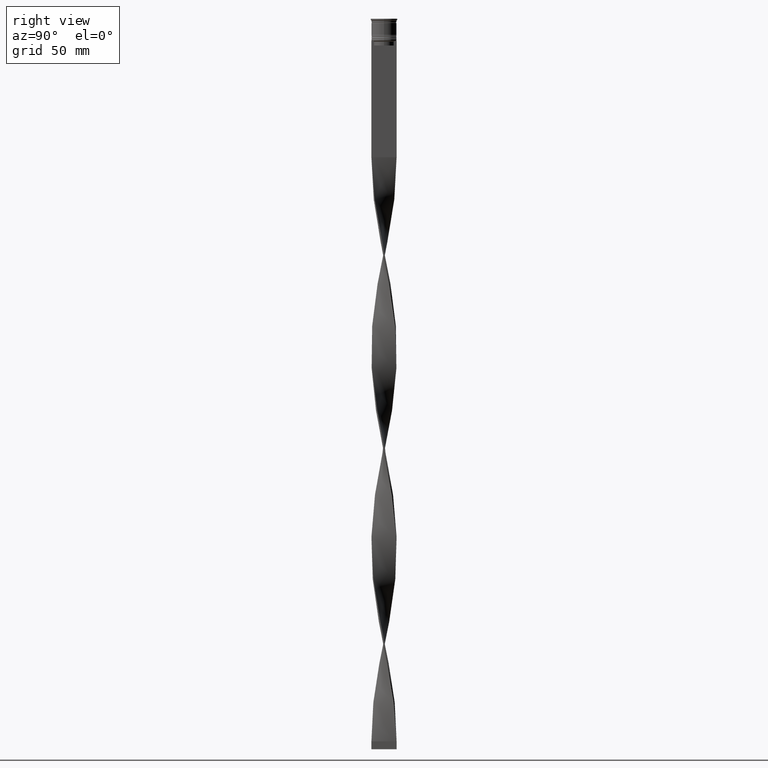
[diagram: clean part render]
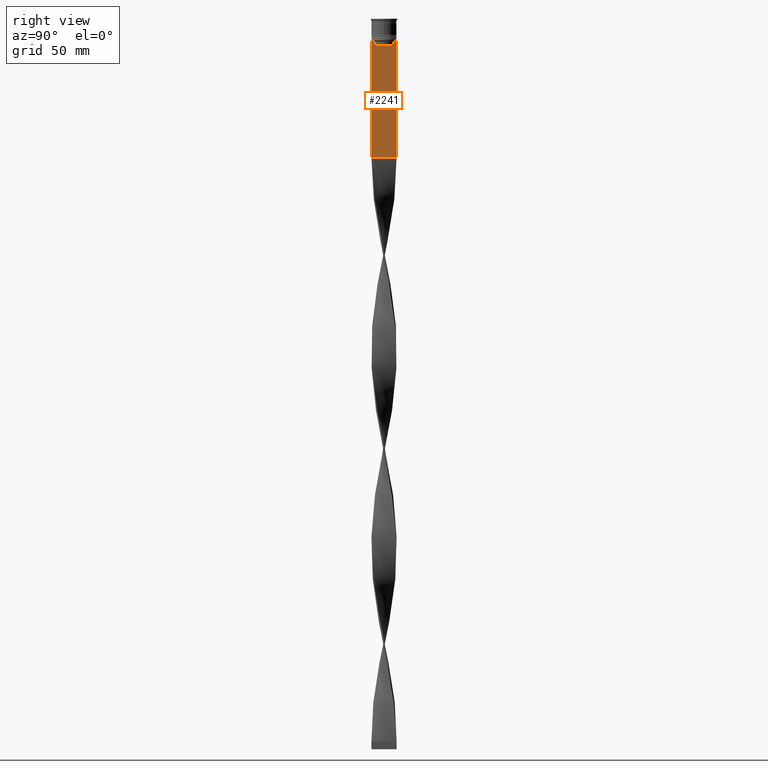
[diagram: same view with one face highlighted and labeled with its STEP entity id]
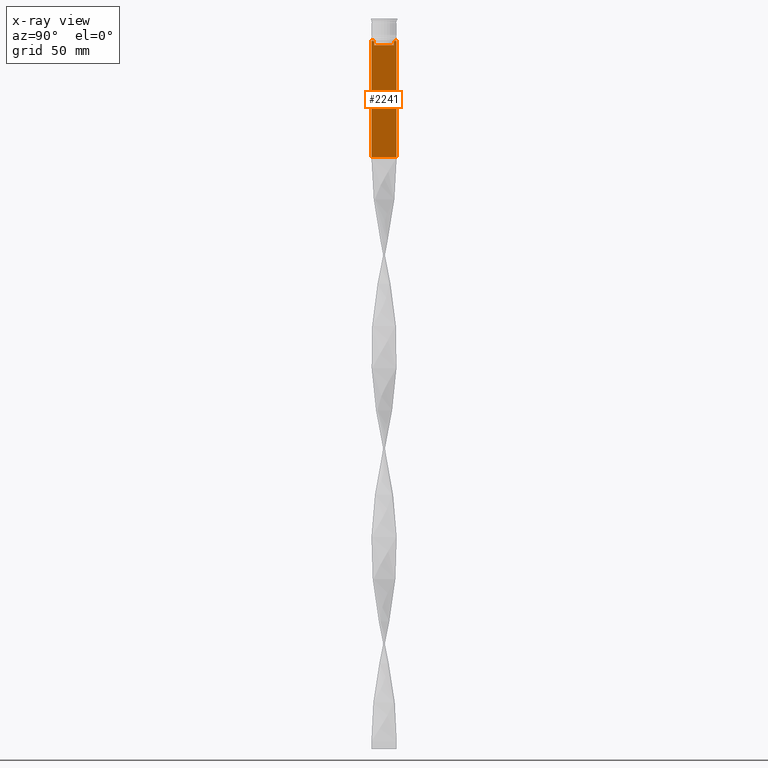
[diagram: x-ray of the same camera — body ghosted, the highlighted face saturated]
A machine part, right view. The second image highlights one B-rep face of the part: STEP entity #2241.
The next image is the same camera in x-ray: the body ghosted, the highlighted face saturated — about 0% of this face is hidden behind the body in this view.
In plain terms, the highlighted planar face has unit normal (-1, 0, 0).
Its self-contained STEP definition (entity closure, byte-faithful):
#26 = VECTOR ( 'NONE', #1980, 1000.000000000000000 ) ;
#42 = CARTESIAN_POINT ( 'NONE',  ( 0.5000000000000001110, -6.714736947305993908, -14.16668390685738821 ) ) ;
#48 = EDGE_CURVE ( 'NONE', #411, #3325, #3118, .T. ) ;
#60 = LINE ( 'NONE', #3711, #3507 ) ;
#130 = LINE ( 'NONE', #4127, #1555 ) ;
#249 = CARTESIAN_POINT ( 'NONE',  ( 0.5000000000000001110, 7.884161337770806632, -14.00000000000000178 ) ) ;
#293 = CARTESIAN_POINT ( 'NONE',  ( 0.5000000000000001110, -6.380438856379708312, -14.50000000000000000 ) ) ;
#324 = ORIENTED_EDGE ( 'NONE', *, *, #3706, .T. ) ;
#325 = DIRECTION ( 'NONE',  ( 0.000000000000000000, 0.000000000000000000, 1.000000000000000000 ) ) ;
#370 = DIRECTION ( 'NONE',  ( 0.000000000000000000, -1.000000000000000000, 0.000000000000000000 ) ) ;
#411 = VERTEX_POINT ( 'NONE', #605 ) ;
#434 = ORIENTED_EDGE ( 'NONE', *, *, #3976, .T. ) ;
#445 = VECTOR ( 'NONE', #3978, 1000.000000000000000 ) ;
#574 = CARTESIAN_POINT ( 'NONE',  ( 0.5000000000000001110, -8.000000000000003553, -88.00000000000000000 ) ) ;
#593 = DIRECTION ( 'NONE',  ( 0.000000000000000000, 0.000000000000000000, -1.000000000000000000 ) ) ;
#597 = VERTEX_POINT ( 'NONE', #2908 ) ;
#605 = CARTESIAN_POINT ( 'NONE',  ( 0.5000000000000001110, 6.881860213634098500, -14.00000000000000178 ) ) ;
#642 = DIRECTION ( 'NONE',  ( 0.000000000000000000, 1.000000000000000000, 0.000000000000000000 ) ) ;
#706 = CARTESIAN_POINT ( 'NONE',  ( 0.5000000000000001110, -6.380438856379708312, -14.50000000000000000 ) ) ;
#726 = EDGE_CURVE ( 'NONE', #597, #2920, #3930, .T. ) ;
#750 = CARTESIAN_POINT ( 'NONE',  ( 0.5000000000000001110, -8.000000000000003553, -14.00000000000000178 ) ) ;
#807 = VERTEX_POINT ( 'NONE', #3137 ) ;
#832 = EDGE_CURVE ( 'NONE', #918, #2399, #1437, .T. ) ;
#911 = VECTOR ( 'NONE', #2263, 1000.000000000000000 ) ;
#918 = VERTEX_POINT ( 'NONE', #2295 ) ;
#923 = CARTESIAN_POINT ( 'NONE',  ( 0.5000000000000001110, 6.380438856379708312, 0.000000000000000000 ) ) ;
#931 = FACE_OUTER_BOUND ( 'NONE', #1723, .T. ) ;
#933 = CARTESIAN_POINT ( 'NONE',  ( 0.5000000000000001110, 7.999999999999996447, 2.031219541881394530 ) ) ;
#980 = EDGE_CURVE ( 'NONE', #3325, #3093, #3245, .T. ) ;
#997 = VERTEX_POINT ( 'NONE', #249 ) ;
#1000 = LINE ( 'NONE', #3097, #1298 ) ;
#1060 = ORIENTED_EDGE ( 'NONE', *, *, #2119, .T. ) ;
#1164 = CARTESIAN_POINT ( 'NONE',  ( 0.5000000000000001110, 6.380438856379708312, -14.50000000000000000 ) ) ;
#1214 = ORIENTED_EDGE ( 'NONE', *, *, #2354, .T. ) ;
#1298 = VECTOR ( 'NONE', #3343, 1000.000000000000000 ) ;
#1437 = LINE ( 'NONE', #2488, #3567 ) ;
#1501 = CARTESIAN_POINT ( 'NONE',  ( 0.5000000000000001110, -8.000000000000003553, -88.00000000000000000 ) ) ;
#1555 = VECTOR ( 'NONE', #3837, 1000.000000000000000 ) ;
#1591 = LINE ( 'NONE', #574, #1973 ) ;
#1638 = DIRECTION ( 'NONE',  ( -1.000000000000000000, 0.000000000000000000, 0.000000000000000000 ) ) ;
#1723 = EDGE_LOOP ( 'NONE', ( #4165, #3906, #3839, #2323, #1214, #434, #2794, #2554, #1060, #2379, #2856, #324 ) ) ;
#1740 = CARTESIAN_POINT ( 'NONE',  ( 0.5000000000000001110, -6.881860213634098500, -14.00000000000000178 ) ) ;
#1787 = DIRECTION ( 'NONE',  ( 0.000000000000000000, -1.000000000000000000, 0.000000000000000000 ) ) ;
#1832 = VECTOR ( 'NONE', #370, 1000.000000000000000 ) ;
#1894 = B_SPLINE_CURVE_WITH_KNOTS ( 'NONE', 3,
 ( #706, #2061, #42, #1740 ),
 .UNSPECIFIED., .F., .F.,
 ( 4, 4 ),
 ( 0.02996184199614751464, 0.03067452609193705923 ),
 .UNSPECIFIED. ) ;
#1936 = LINE ( 'NONE', #3955, #445 ) ;
#1963 = EDGE_CURVE ( 'NONE', #997, #411, #3758, .T. ) ;
#1973 = VECTOR ( 'NONE', #642, 1000.000000000000000 ) ;
#1980 = DIRECTION ( 'NONE',  ( -0.000000000000000000, -0.000000000000000000, 1.000000000000000000 ) ) ;
#2061 = CARTESIAN_POINT ( 'NONE',  ( 0.5000000000000001110, -6.547597841511247019, -14.33335192438652150 ) ) ;
#2070 = CARTESIAN_POINT ( 'NONE',  ( 0.5000000000000001110, 6.380438856379708312, -17.00000000000000000 ) ) ;
#2119 = EDGE_CURVE ( 'NONE', #2129, #4055, #130, .T. ) ;
#2129 = VERTEX_POINT ( 'NONE', #2512 ) ;
#2241 = ADVANCED_FACE ( 'NONE', ( #931 ), #4238, .F. ) ;
#2247 = EDGE_CURVE ( 'NONE', #4055, #2920, #1591, .T. ) ;
#2263 = DIRECTION ( 'NONE',  ( 0.000000000000000000, 0.000000000000000000, -1.000000000000000000 ) ) ;
#2292 = CARTESIAN_POINT ( 'NONE',  ( 0.5000000000000001110, 6.714736947114692711, -14.16668390704818847 ) ) ;
#2295 = CARTESIAN_POINT ( 'NONE',  ( 0.5000000000000001110, -6.881860213634098500, -14.00000000000000178 ) ) ;
#2323 = ORIENTED_EDGE ( 'NONE', *, *, #3970, .T. ) ;
#2354 = EDGE_CURVE ( 'NONE', #807, #3430, #2556, .T. ) ;
#2379 = ORIENTED_EDGE ( 'NONE', *, *, #2247, .T. ) ;
#2399 = VERTEX_POINT ( 'NONE', #4260 ) ;
#2403 = DIRECTION ( 'NONE',  ( 0.000000000000000000, -1.000000000000000000, 0.000000000000000000 ) ) ;
#2463 = EDGE_CURVE ( 'NONE', #2399, #2129, #60, .T. ) ;
#2488 = CARTESIAN_POINT ( 'NONE',  ( 0.5000000000000001110, -8.000000000000003553, -14.00000000000000178 ) ) ;
#2512 = CARTESIAN_POINT ( 'NONE',  ( 0.5000000000000001110, -8.000000000000003553, -14.00000000000000178 ) ) ;
#2554 = ORIENTED_EDGE ( 'NONE', *, *, #2463, .T. ) ;
#2556 = LINE ( 'NONE', #3573, #26 ) ;
#2592 = AXIS2_PLACEMENT_3D ( 'NONE', #3321, #1638, #325 ) ;
#2787 = CARTESIAN_POINT ( 'NONE',  ( 0.5000000000000001110, 6.547597841304911626, -14.33335192459222718 ) ) ;
#2794 = ORIENTED_EDGE ( 'NONE', *, *, #832, .T. ) ;
#2856 = ORIENTED_EDGE ( 'NONE', *, *, #726, .F. ) ;
#2908 = CARTESIAN_POINT ( 'NONE',  ( 0.5000000000000001110, 7.999999999999996447, -14.00000000000000178 ) ) ;
#2920 = VERTEX_POINT ( 'NONE', #3634 ) ;
#3047 = CARTESIAN_POINT ( 'NONE',  ( 0.5000000000000001110, 6.881860213634098500, -14.00000000000000178 ) ) ;
#3093 = VERTEX_POINT ( 'NONE', #2070 ) ;
#3097 = CARTESIAN_POINT ( 'NONE',  ( 0.5000000000000001110, 6.399999999999999467, -17.00000000000000000 ) ) ;
#3118 = B_SPLINE_CURVE_WITH_KNOTS ( 'NONE', 3,
 ( #3047, #2292, #2787, #1164 ),
 .UNSPECIFIED., .F., .F.,
 ( 4, 4 ),
 ( 0.01172465562756038263, 0.01243276816391822651 ),
 .UNSPECIFIED. ) ;
#3137 = CARTESIAN_POINT ( 'NONE',  ( 0.5000000000000001110, -6.380438856379708312, -17.00000000000000000 ) ) ;
#3245 = LINE ( 'NONE', #923, #4279 ) ;
#3316 = CARTESIAN_POINT ( 'NONE',  ( 0.5000000000000001110, 6.380438856379708312, -14.50000000000000000 ) ) ;
#3321 = CARTESIAN_POINT ( 'NONE',  ( 0.5000000000000001110, -8.000000000000003553, 2.031219541881394530 ) ) ;
#3325 = VERTEX_POINT ( 'NONE', #3316 ) ;
#3343 = DIRECTION ( 'NONE',  ( 0.000000000000000000, -1.000000000000000000, 0.000000000000000000 ) ) ;
#3430 = VERTEX_POINT ( 'NONE', #293 ) ;
#3507 = VECTOR ( 'NONE', #2403, 1000.000000000000000 ) ;
#3567 = VECTOR ( 'NONE', #1787, 1000.000000000000000 ) ;
#3573 = CARTESIAN_POINT ( 'NONE',  ( 0.5000000000000001110, -6.380438856379708312, 0.000000000000000000 ) ) ;
#3634 = CARTESIAN_POINT ( 'NONE',  ( 0.5000000000000001110, 7.999999999999996447, -88.00000000000000000 ) ) ;
#3706 = EDGE_CURVE ( 'NONE', #597, #997, #1936, .T. ) ;
#3711 = CARTESIAN_POINT ( 'NONE',  ( 0.5000000000000001110, -8.000000000000003553, -14.00000000000000178 ) ) ;
#3758 = LINE ( 'NONE', #750, #1832 ) ;
#3837 = DIRECTION ( 'NONE',  ( 0.000000000000000000, 0.000000000000000000, -1.000000000000000000 ) ) ;
#3839 = ORIENTED_EDGE ( 'NONE', *, *, #980, .T. ) ;
#3906 = ORIENTED_EDGE ( 'NONE', *, *, #48, .T. ) ;
#3930 = LINE ( 'NONE', #933, #911 ) ;
#3955 = CARTESIAN_POINT ( 'NONE',  ( 0.5000000000000001110, -8.000000000000003553, -14.00000000000000178 ) ) ;
#3970 = EDGE_CURVE ( 'NONE', #3093, #807, #1000, .T. ) ;
#3976 = EDGE_CURVE ( 'NONE', #3430, #918, #1894, .T. ) ;
#3978 = DIRECTION ( 'NONE',  ( 0.000000000000000000, -1.000000000000000000, 0.000000000000000000 ) ) ;
#4055 = VERTEX_POINT ( 'NONE', #1501 ) ;
#4127 = CARTESIAN_POINT ( 'NONE',  ( 0.5000000000000001110, -8.000000000000003553, 2.031219541881394530 ) ) ;
#4165 = ORIENTED_EDGE ( 'NONE', *, *, #1963, .T. ) ;
#4238 = PLANE ( 'NONE',  #2592 ) ;
#4260 = CARTESIAN_POINT ( 'NONE',  ( 0.5000000000000001110, -7.884161337770806632, -14.00000000000000178 ) ) ;
#4279 = VECTOR ( 'NONE', #593, 1000.000000000000000 ) ;